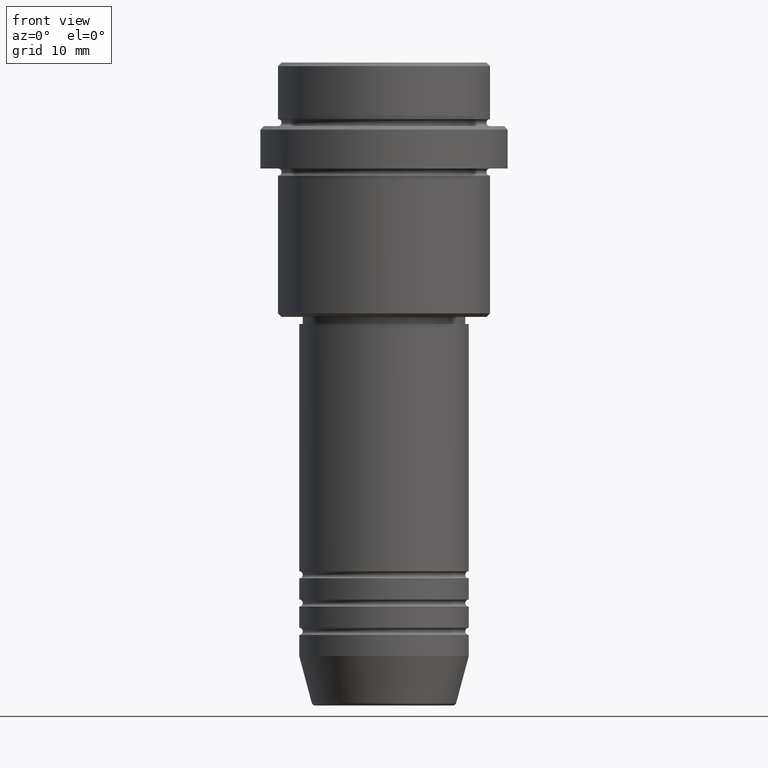
[diagram: clean part render]
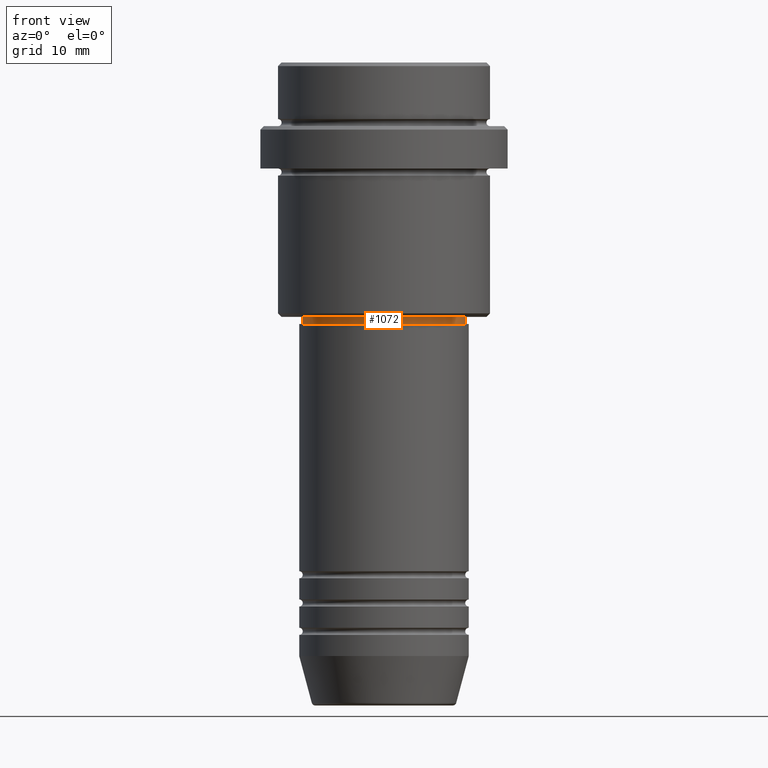
[diagram: same view with one face highlighted and labeled with its STEP entity id]
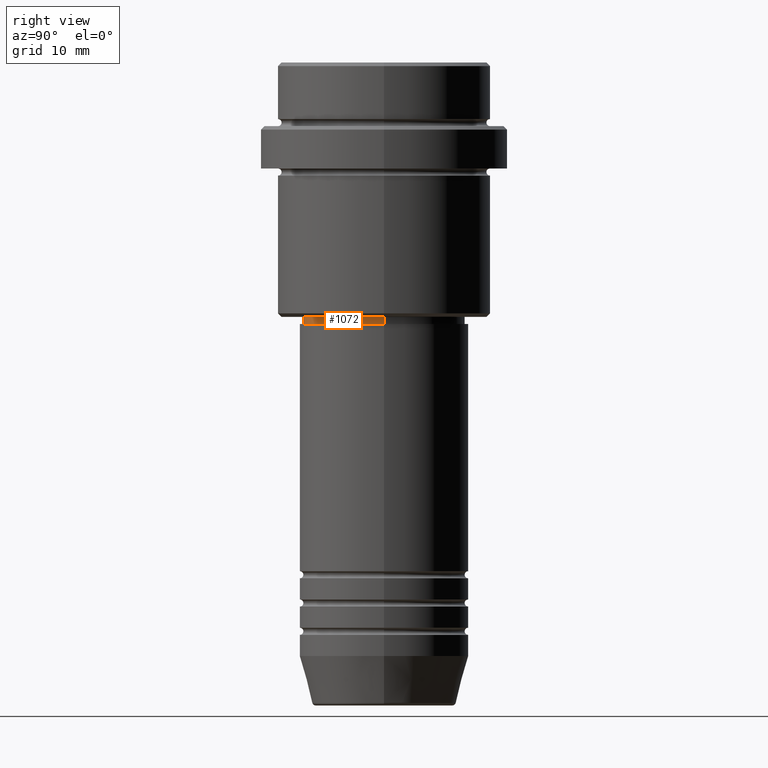
[diagram: same view with one face highlighted and labeled with its STEP entity id]
A machine part, front view. The second image highlights one B-rep face of the part: STEP entity #1072.
A second angle (right view) of the same face is appended — the face is thin or edge-on in the first view.
In plain terms, the highlighted cylindrical surface (partial cylindrical patch) has radius 11.5 mm, axis along (-0, -0, 1).
Its self-contained STEP definition (entity closure, byte-faithful):
#56 = CARTESIAN_POINT ( 'NONE',  ( 0.000000000000000000, 0.000000000000000000, -37.00000000000000000 ) ) ;
#133 = VECTOR ( 'NONE', #1035, 1000.000000000000000 ) ;
#137 = DIRECTION ( 'NONE',  ( 1.000000000000000000, 0.000000000000000000, 0.000000000000000000 ) ) ;
#168 = CARTESIAN_POINT ( 'NONE',  ( 0.000000000000000000, 0.000000000000000000, -36.00000000000000000 ) ) ;
#182 = LINE ( 'NONE', #630, #133 ) ;
#191 = DIRECTION ( 'NONE',  ( -0.000000000000000000, -0.000000000000000000, 1.000000000000000000 ) ) ;
#229 = FACE_OUTER_BOUND ( 'NONE', #976, .T. ) ;
#235 = CYLINDRICAL_SURFACE ( 'NONE', #875, 11.49999999999999289 ) ;
#243 = LINE ( 'NONE', #461, #711 ) ;
#262 = CARTESIAN_POINT ( 'NONE',  ( -11.49999999999999289, 1.408343819019455387E-15, -37.00000000000000000 ) ) ;
#273 = DIRECTION ( 'NONE',  ( 1.000000000000000000, 0.000000000000000000, 0.000000000000000000 ) ) ;
#354 = ORIENTED_EDGE ( 'NONE', *, *, #1249, .F. ) ;
#393 = DIRECTION ( 'NONE',  ( -0.000000000000000000, -0.000000000000000000, 1.000000000000000000 ) ) ;
#422 = CARTESIAN_POINT ( 'NONE',  ( 11.49999999999999467, 0.000000000000000000, -36.00000000000000000 ) ) ;
#427 = EDGE_CURVE ( 'NONE', #838, #498, #182, .T. ) ;
#461 = CARTESIAN_POINT ( 'NONE',  ( 11.49999999999999289, 0.000000000000000000, 0.000000000000000000 ) ) ;
#498 = VERTEX_POINT ( 'NONE', #1293 ) ;
#546 = CARTESIAN_POINT ( 'NONE',  ( 11.49999999999999289, 0.000000000000000000, -37.00000000000000000 ) ) ;
#604 = EDGE_CURVE ( 'NONE', #1284, #1231, #243, .T. ) ;
#630 = CARTESIAN_POINT ( 'NONE',  ( -11.49999999999999289, 1.408343819019455387E-15, 0.000000000000000000 ) ) ;
#648 = ORIENTED_EDGE ( 'NONE', *, *, #427, .F. ) ;
#686 = CARTESIAN_POINT ( 'NONE',  ( 0.000000000000000000, 0.000000000000000000, 0.000000000000000000 ) ) ;
#688 = DIRECTION ( 'NONE',  ( -0.000000000000000000, -0.000000000000000000, 1.000000000000000000 ) ) ;
#711 = VECTOR ( 'NONE', #688, 1000.000000000000000 ) ;
#838 = VERTEX_POINT ( 'NONE', #262 ) ;
#862 = ORIENTED_EDGE ( 'NONE', *, *, #1165, .T. ) ;
#875 = AXIS2_PLACEMENT_3D ( 'NONE', #686, #1126, #137 ) ;
#918 = AXIS2_PLACEMENT_3D ( 'NONE', #168, #191, #273 ) ;
#961 = DIRECTION ( 'NONE',  ( 1.000000000000000000, 0.000000000000000000, 0.000000000000000000 ) ) ;
#976 = EDGE_LOOP ( 'NONE', ( #648, #862, #1101, #354 ) ) ;
#1035 = DIRECTION ( 'NONE',  ( -0.000000000000000000, -0.000000000000000000, 1.000000000000000000 ) ) ;
#1072 = ADVANCED_FACE ( 'NONE', ( #229 ), #235, .T. ) ;
#1101 = ORIENTED_EDGE ( 'NONE', *, *, #604, .T. ) ;
#1126 = DIRECTION ( 'NONE',  ( -0.000000000000000000, -0.000000000000000000, 1.000000000000000000 ) ) ;
#1165 = EDGE_CURVE ( 'NONE', #838, #1284, #1333, .T. ) ;
#1231 = VERTEX_POINT ( 'NONE', #422 ) ;
#1249 = EDGE_CURVE ( 'NONE', #498, #1231, #1353, .T. ) ;
#1259 = AXIS2_PLACEMENT_3D ( 'NONE', #56, #393, #961 ) ;
#1284 = VERTEX_POINT ( 'NONE', #546 ) ;
#1293 = CARTESIAN_POINT ( 'NONE',  ( -11.49999999999999467, 1.408343819019455781E-15, -36.00000000000000000 ) ) ;
#1333 = CIRCLE ( 'NONE', #1259, 11.49999999999999289 ) ;
#1353 = CIRCLE ( 'NONE', #918, 11.49999999999999467 ) ;